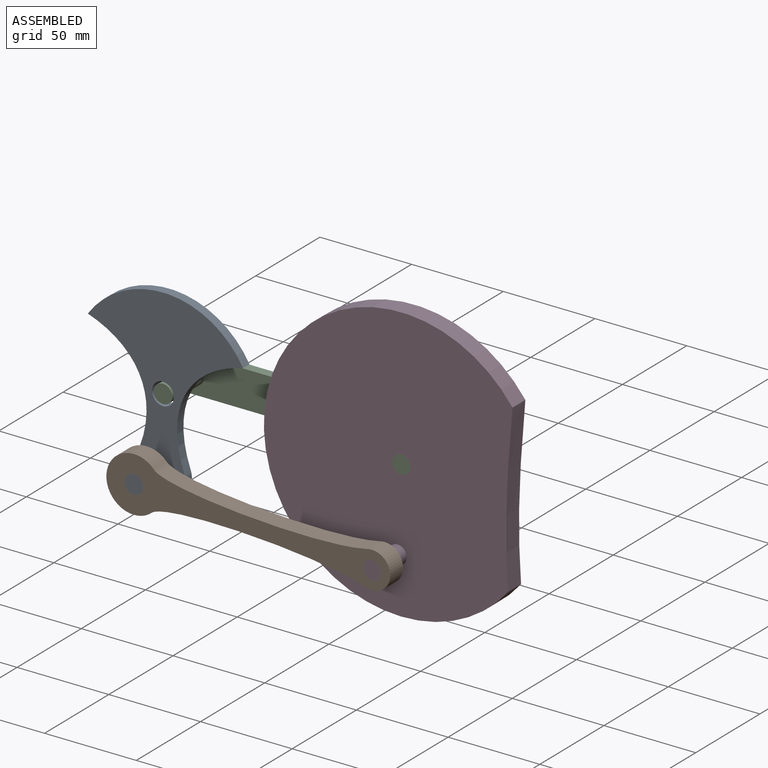
[diagram: assembled view]
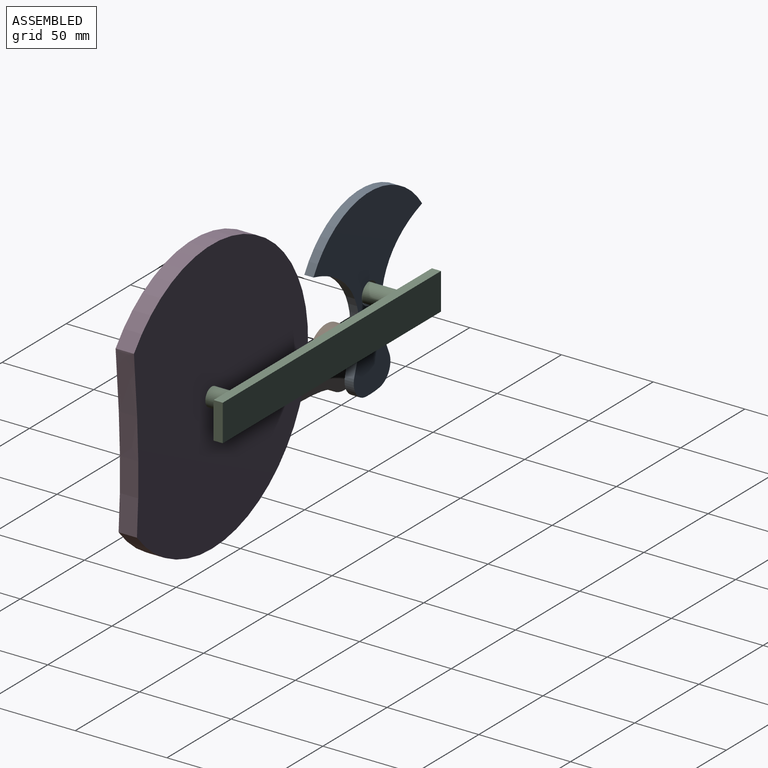
[diagram: assembled view, second angle]
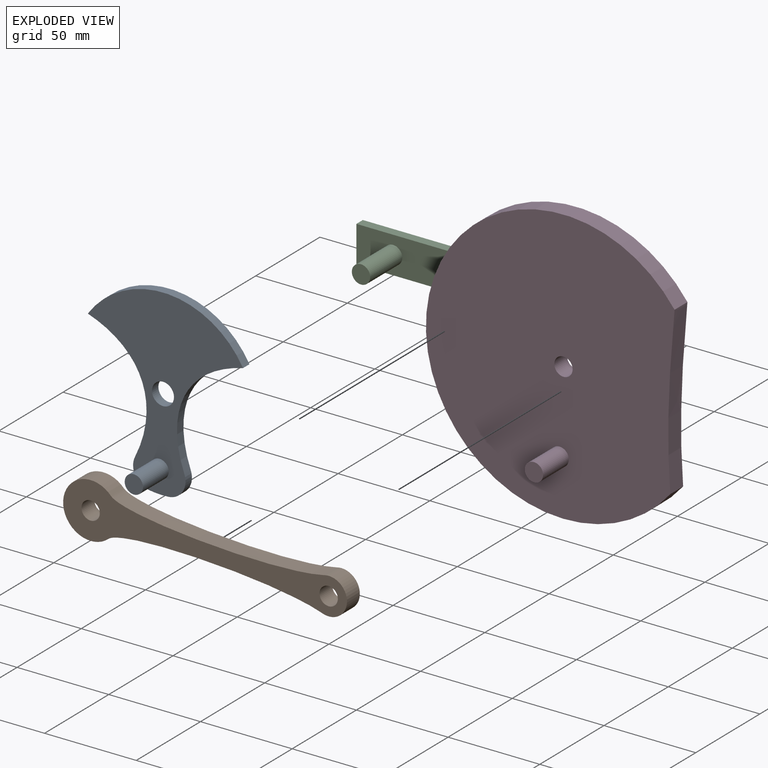
[diagram: exploded view]
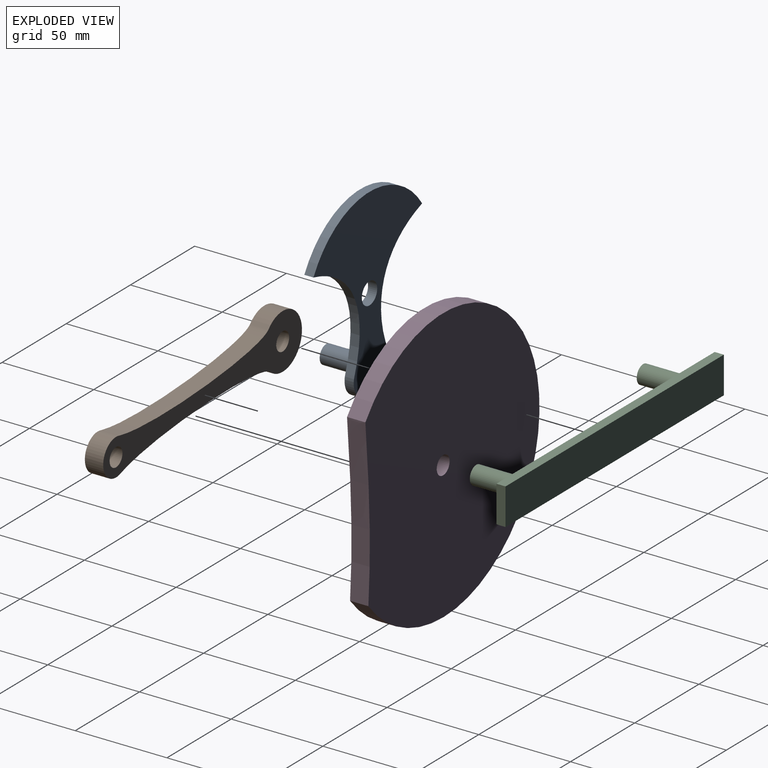
[diagram: exploded view, second angle]
ASSEMBLY  parts=4 mates=4
PART A: 11 faces, bbox 84.7x25x100 mm
  f0: cylinder r=5mm len=20mm, axis (0,1,0), area 628.3mm2, adj f1,f9
  f1: plane 10x10mm, normal (0,-1,0), area 78.5mm2, adj f0
  f2: cylinder r=10mm len=13.92mm, axis (0,1,0), area 93.6mm2, adj f3,f8,f9,f10
  f3: extruded ~62.34x34mm, area 399.6mm2, adj f2,f4,f9,f10
  f4: cylinder r=50mm len=84.73mm, axis (0,1,0), area 505.5mm2, adj f3,f5,f9,f10
  f5: extruded ~62.34x34mm, area 399.6mm2, adj f4,f6,f9,f10
  f6: cylinder r=10mm len=13.92mm, axis (0,1,0), area 93.6mm2, adj f5,f8,f9,f10
  f7: cylinder r=6mm len=12mm, axis (0,1,0), area 188.5mm2, adj f9,f10
  f8: cylinder r=50mm len=10.76mm, axis (0,1,0), area 53.9mm2, adj f2,f6,f9,f10
  f9: plane 100x84.73mm, normal (0,-1,0), area 3380.2mm2, adj f0,f2,f3,f4,f5,f6,f7,f8
  f10: plane 100x84.73mm, normal (0,1,0), area 3458.8mm2, adj f2,f3,f4,f5,f6,f7,f8
PART B: 8 faces, bbox 155x10x30 mm
  f0: extruded ~116.23x10mm, area 1173.7mm2, adj f1,f4,f6,f7
  f1: cylinder r=15mm len=30mm, axis (0,1,0), area 703.2mm2, adj f0,f2,f6,f7
  f2: extruded ~116.23x10mm, area 1173.7mm2, adj f1,f4,f6,f7
  f3: cylinder r=5mm len=10mm, axis (0,1,0), area 314.2mm2, adj f6,f7
  f4: cylinder r=10mm len=20mm, axis (0,1,0), area 381.3mm2, adj f0,f2,f6,f7
  f5: cylinder r=5mm len=10mm, axis (0,1,0), area 314.2mm2, adj f6,f7
  f6: plane 155x30mm, normal (0,-1,0), area 2060.2mm2, adj f0,f1,f2,f3,f4,f5
  f7: plane 155x30mm, normal (0,1,0), area 2060.2mm2, adj f0,f1,f2,f3,f4,f5
PART C: 10 faces, bbox 170x30x20 mm
  f0: plane 170x5mm, normal (0,0,1), area 850mm2, adj f1,f3,f4,f5
  f1: plane 20x5mm, normal (-1,0,0), area 100mm2, adj f0,f2,f4,f5
  f2: plane 170x5mm, normal (0,0,-1), area 850mm2, adj f1,f3,f4,f5
  f3: plane 20x5mm, normal (1,0,0), area 100mm2, adj f0,f2,f4,f5
  f4: plane 170x20mm, normal (0,1,0), area 3400mm2, adj f0,f1,f2,f3
  f5: plane 170x20mm, normal (0,-1,0), area 3242.9mm2, adj f0,f1,f2,f3,f6,f8
  f6: cylinder r=5mm len=25mm, axis (0,1,0), area 785.4mm2, adj f5,f7
  f7: plane 10x10mm, normal (0,-1,0), area 78.5mm2, adj f6
  f8: cylinder r=5mm len=25mm, axis (0,1,0), area 785.4mm2, adj f5,f9
  f9: plane 10x10mm, normal (0,-1,0), area 78.5mm2, adj f8
PART D: 8 faces, bbox 135.4x30x150 mm
  f0: cylinder r=5mm len=20mm, axis (0,1,0), area 628.3mm2, adj f5,f7
  f1: extruded ~10x0.08mm, area 1.1mm2, adj f2,f4,f5,f6
  f2: cylinder r=75mm len=150mm, axis (0,1,0), area 3727.2mm2, adj f1,f4,f5,f6
  f3: cylinder r=5mm len=10mm, axis (0,1,0), area 314.2mm2, adj f5,f6
  f4: extruded ~91.48x10mm, area 916.2mm2, adj f1,f2,f5,f6
  f5: plane 150x135.38mm, normal (0,-1,0), area 16424.4mm2, adj f0,f1,f2,f3,f4
  f6: plane 150x135.38mm, normal (0,1,0), area 16502.9mm2, adj f1,f2,f3,f4
  f7: plane 10x10mm, normal (0,-1,0), area 78.5mm2, adj f0
PLACE A rot(axis=(0,-1,0),177.1deg) t=(-64.93,-10.05,-0.13)mm
PLACE B rot(axis=(0,1,0),3.3deg) t=(-66.81,-25.05,-37.58)mm
PLACE C t=(-16.14,9.95,-3.4)mm fixed
PLACE D rot(axis=(0,-1,0),177.3deg) t=(65.07,-5.05,-0.13)mm
MATE revolute D.f0 <-> B.f4  axis (0,-1,0) through (62.97,-35.05,-45.08)mm
MATE revolute C.f8 <-> D.f2  axis (0,-1,0) through (65.07,-15.05,-0.13)mm
MATE revolute A.f7 <-> C.f6  axis (0,1,0) through (-64.93,-15.05,-0.13)mm
MATE revolute B.f3 <-> A.f0  axis (0,-1,0) through (-66.81,-35.05,-37.58)mm
